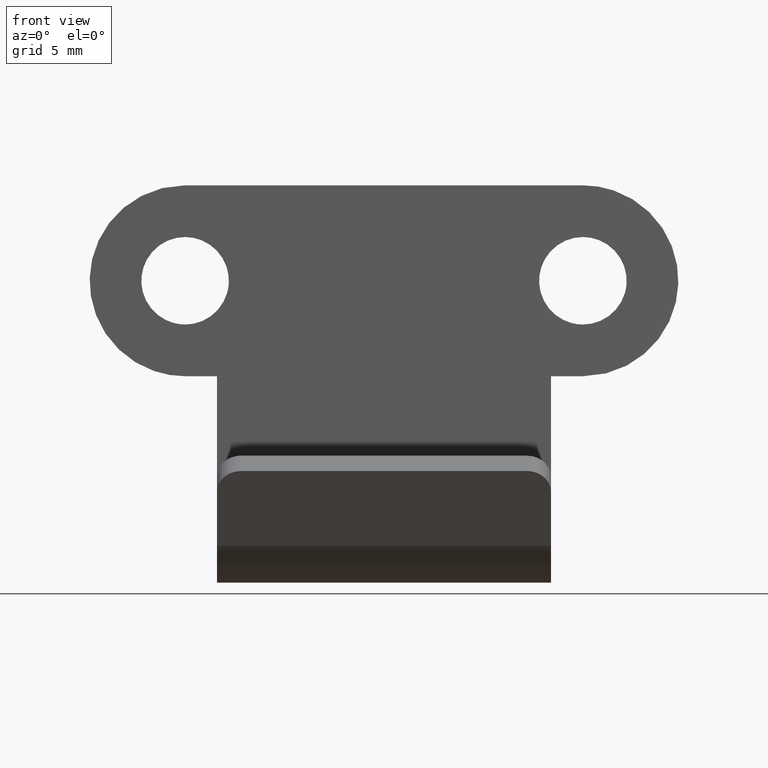
[diagram: clean part render]
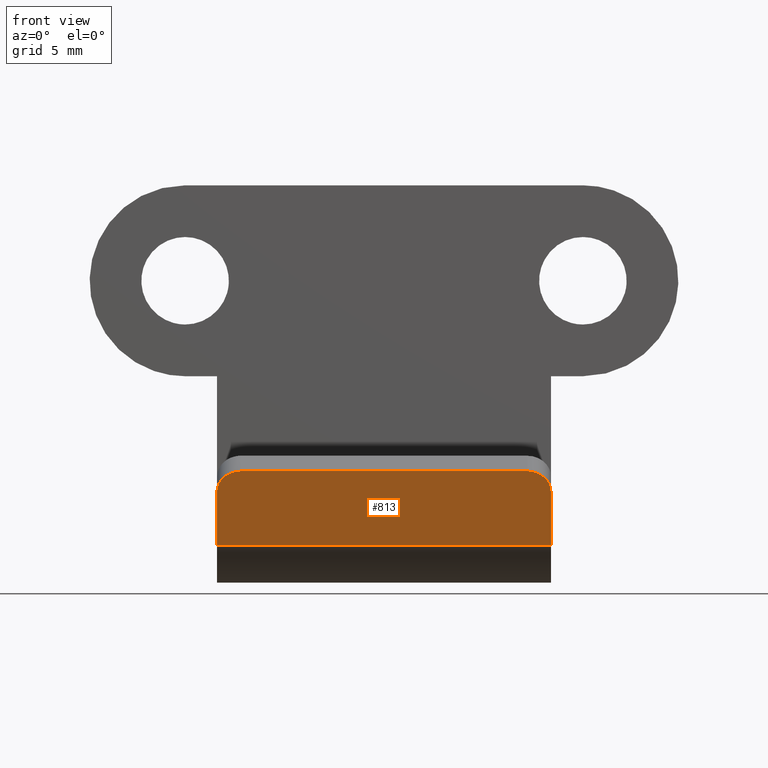
[diagram: same view with one face highlighted and labeled with its STEP entity id]
A machine part, front view. The second image highlights one B-rep face of the part: STEP entity #813.
In plain terms, the highlighted face is a freeform B-spline surface patch.
Its self-contained STEP definition (entity closure, byte-faithful):
#430=CARTESIAN_POINT('',(-9.0,-11.0,-17.959000000000000));
#431=VERTEX_POINT('',#430);
#432=CARTESIAN_POINT('',(-10.500000000000000,-10.284340886672441,-19.277275018970251));
#433=VERTEX_POINT('',#432);
#434=CARTESIAN_POINT('',(-9.0,-11.0,-17.959000000000000));
#435=CARTESIAN_POINT('',(-10.499999999999998,-10.999999999999991,-17.958999999999907));
#436=CARTESIAN_POINT('',(-10.500000000000000,-10.284340886672441,-19.277275018970251));
#444=(BOUNDED_CURVE()B_SPLINE_CURVE(2,(#434,#435,#436),.UNSPECIFIED.,.F.,.U.)CURVE()GEOMETRIC_REPRESENTATION_ITEM()QUASI_UNIFORM_CURVE()RATIONAL_B_SPLINE_CURVE((1.0,0.707106781186547,1.0))REPRESENTATION_ITEM(''));
#445=EDGE_CURVE('',#431,#433,#444,.T.);
#491=CARTESIAN_POINT('',(10.500000000000000,-10.284340886672441,-19.277275018970251));
#492=VERTEX_POINT('',#491);
#493=CARTESIAN_POINT('',(9.0,-11.0,-17.959000000000000));
#494=VERTEX_POINT('',#493);
#495=CARTESIAN_POINT('',(10.500000000000000,-10.284340886672441,-19.277275018970251));
#496=CARTESIAN_POINT('',(10.499999999999998,-10.999999768070049,-17.959000427224886));
#497=CARTESIAN_POINT('',(9.0,-11.0,-17.959000000000000));
#505=(BOUNDED_CURVE()B_SPLINE_CURVE(2,(#495,#496,#497),.UNSPECIFIED.,.F.,.U.)CURVE()GEOMETRIC_REPRESENTATION_ITEM()QUASI_UNIFORM_CURVE()RATIONAL_B_SPLINE_CURVE((1.0,0.707106895765713,1.0))REPRESENTATION_ITEM(''));
#506=EDGE_CURVE('',#492,#494,#505,.T.);
#773=CARTESIAN_POINT('',(9.0,-11.0,-17.959000000000000));
#774=CARTESIAN_POINT('',(-9.0,-11.0,-17.959000000000000));
#775=QUASI_UNIFORM_CURVE('',1,(#773,#774),.UNSPECIFIED.,.F.,.U.);
#776=EDGE_CURVE('',#494,#431,#775,.T.);
#784=CARTESIAN_POINT('',(-11.548949959297930,-11.127122894116720,-17.724834134530781));
#785=CARTESIAN_POINT('',(-11.548949959297930,-8.327877560964748,-22.881165027189500));
#786=CARTESIAN_POINT('',(11.548950522561819,-11.127122894116720,-17.724834134530781));
#787=CARTESIAN_POINT('',(11.548950522561819,-8.327877560964748,-22.881165027189500));
#788=B_SPLINE_SURFACE_WITH_KNOTS('',1,1,((#784,#786),(#785,#787)),.UNSPECIFIED.,.F.,.F.,.U.,(2,2),(2,2),(0.0,5.867156271121448),(0.0,23.097900481859750),.UNSPECIFIED.);
#789=CARTESIAN_POINT('',(10.500000000000000,-8.455000000000000,-22.646999999999998));
#790=VERTEX_POINT('',#789);
#791=CARTESIAN_POINT('',(10.500000000000000,-8.455000000000000,-22.646999999999998));
#792=CARTESIAN_POINT('',(10.500000000000000,-10.284340886672441,-19.277275018970251));
#793=QUASI_UNIFORM_CURVE('',1,(#791,#792),.UNSPECIFIED.,.F.,.U.);
#794=EDGE_CURVE('',#790,#492,#793,.T.);
#795=ORIENTED_EDGE('',*,*,#794,.T.);
#796=ORIENTED_EDGE('',*,*,#506,.T.);
#797=ORIENTED_EDGE('',*,*,#776,.T.);
#798=ORIENTED_EDGE('',*,*,#445,.T.);
#799=CARTESIAN_POINT('',(-10.500000000000000,-8.455000000000000,-22.646999999999998));
#800=VERTEX_POINT('',#799);
#801=CARTESIAN_POINT('',(-10.500000000000000,-8.455000000000000,-22.646999999999998));
#802=CARTESIAN_POINT('',(-10.500000000000000,-10.284340886672441,-19.277275018970251));
#803=QUASI_UNIFORM_CURVE('',1,(#801,#802),.UNSPECIFIED.,.F.,.U.);
#804=EDGE_CURVE('',#800,#433,#803,.T.);
#805=ORIENTED_EDGE('',*,*,#804,.F.);
#806=CARTESIAN_POINT('',(10.500000000000000,-8.455000000000000,-22.646999999999998));
#807=CARTESIAN_POINT('',(-10.500000000000000,-8.455000000000000,-22.646999999999998));
#808=QUASI_UNIFORM_CURVE('',1,(#806,#807),.UNSPECIFIED.,.F.,.U.);
#809=EDGE_CURVE('',#790,#800,#808,.T.);
#810=ORIENTED_EDGE('',*,*,#809,.F.);
#811=EDGE_LOOP('',(#795,#796,#797,#798,#805,#810));
#812=FACE_OUTER_BOUND('',#811,.T.);
#813=ADVANCED_FACE('',(#812),#788,.T.);